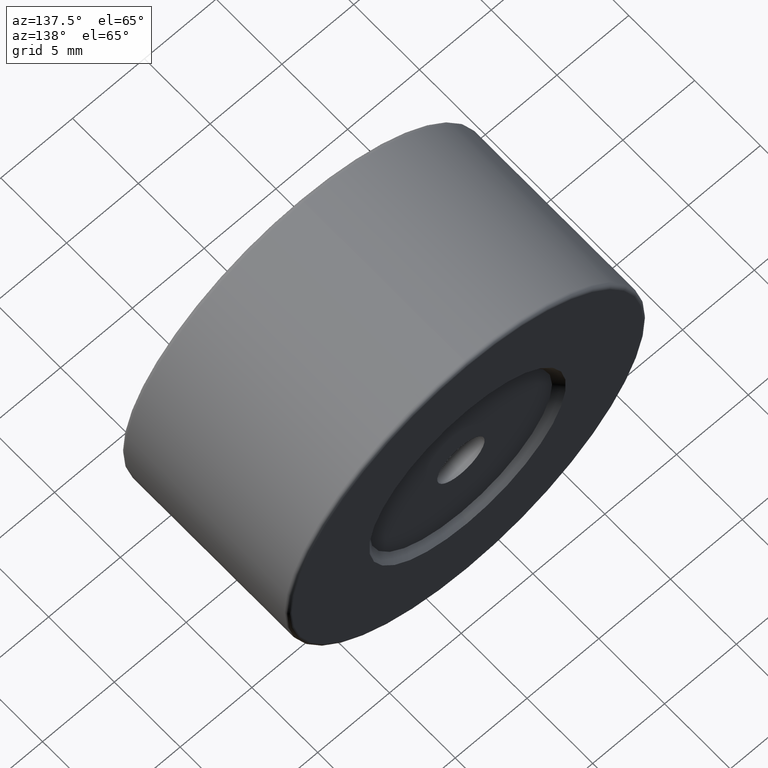
[diagram: clean part render]
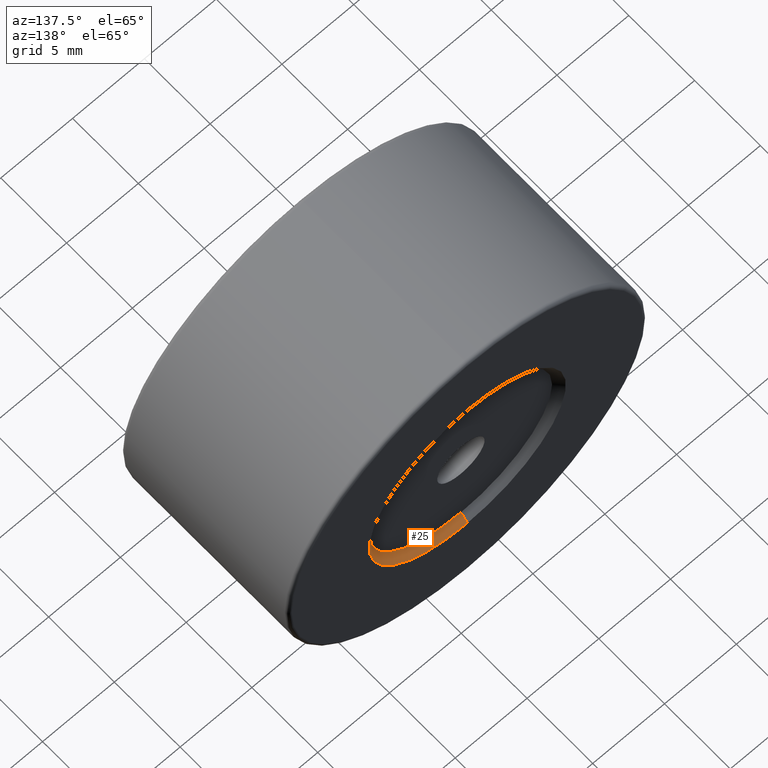
[diagram: same view with one face highlighted and labeled with its STEP entity id]
A machine part, auxiliary view. The second image highlights one B-rep face of the part: STEP entity #25.
In plain terms, the highlighted conical surface has half-angle 45 deg.
Its self-contained STEP definition (entity closure, byte-faithful):
#11 = CARTESIAN_POINT ( 'NONE',  ( -22.50520183104453409, 7.748252184769388151, 56.85000000000000853 ) ) ;
#24 = CARTESIAN_POINT ( 'NONE',  ( -22.50520183104453409, 7.248252184769383710, 56.35000000000000142 ) ) ;
#25 = ADVANCED_FACE ( 'NONE', ( #126 ), #299, .F. ) ;
#27 = DIRECTION ( 'NONE',  ( 0.0000000000000000000, 0.0000000000000000000, 1.000000000000000000 ) ) ;
#31 = CIRCLE ( 'NONE', #364, 6.850000000000008527 ) ;
#33 = VERTEX_POINT ( 'NONE', #228 ) ;
#55 = VERTEX_POINT ( 'NONE', #77 ) ;
#63 = DIRECTION ( 'NONE',  ( 8.659560562354955045E-17, 0.7071067811865456854, -0.7071067811865493491 ) ) ;
#77 = CARTESIAN_POINT ( 'NONE',  ( -22.50520183104453409, 7.248252184769387263, 56.35000000000000142 ) ) ;
#84 = ORIENTED_EDGE ( 'NONE', *, *, #139, .F. ) ;
#97 = VECTOR ( 'NONE', #63, 1000.000000000000000 ) ;
#98 = AXIS2_PLACEMENT_3D ( 'NONE', #301, #496, #487 ) ;
#105 = DIRECTION ( 'NONE',  ( -0.0000000000000000000, -1.000000000000000000, -0.0000000000000000000 ) ) ;
#120 = DIRECTION ( 'NONE',  ( 0.0000000000000000000, 0.7071067811865456854, 0.7071067811865493491 ) ) ;
#126 = FACE_OUTER_BOUND ( 'NONE', #185, .T. ) ;
#139 = EDGE_CURVE ( 'NONE', #190, #357, #31, .T. ) ;
#156 = EDGE_CURVE ( 'NONE', #55, #357, #336, .T. ) ;
#185 = EDGE_LOOP ( 'NONE', ( #450, #209, #365, #84 ) ) ;
#190 = VERTEX_POINT ( 'NONE', #480 ) ;
#200 = EDGE_CURVE ( 'NONE', #55, #33, #270, .T. ) ;
#209 = ORIENTED_EDGE ( 'NONE', *, *, #200, .F. ) ;
#219 = DIRECTION ( 'NONE',  ( 0.0000000000000000000, 1.000000000000000000, 0.0000000000000000000 ) ) ;
#228 = CARTESIAN_POINT ( 'NONE',  ( -22.50520183104453409, 7.248252184769387263, 43.64999999999999858 ) ) ;
#270 = CIRCLE ( 'NONE', #424, 6.350000000000001421 ) ;
#282 = CARTESIAN_POINT ( 'NONE',  ( -22.50520183104453409, 7.248252184769383710, 43.64999999999999858 ) ) ;
#299 = CONICAL_SURFACE ( 'NONE', #98, 6.350000000000001421, 0.7853981633974509435 ) ;
#301 = CARTESIAN_POINT ( 'NONE',  ( -22.50520183104453409, 7.248252184769383710, 50.00000000000000000 ) ) ;
#315 = EDGE_CURVE ( 'NONE', #33, #190, #333, .T. ) ;
#333 = LINE ( 'NONE', #282, #97 ) ;
#336 = LINE ( 'NONE', #24, #515 ) ;
#357 = VERTEX_POINT ( 'NONE', #11 ) ;
#364 = AXIS2_PLACEMENT_3D ( 'NONE', #509, #105, #372 ) ;
#365 = ORIENTED_EDGE ( 'NONE', *, *, #156, .T. ) ;
#372 = DIRECTION ( 'NONE',  ( 0.0000000000000000000, 0.0000000000000000000, 1.000000000000000000 ) ) ;
#424 = AXIS2_PLACEMENT_3D ( 'NONE', #440, #219, #27 ) ;
#440 = CARTESIAN_POINT ( 'NONE',  ( -22.50520183104453409, 7.248252184769387263, 50.00000000000000000 ) ) ;
#450 = ORIENTED_EDGE ( 'NONE', *, *, #315, .F. ) ;
#480 = CARTESIAN_POINT ( 'NONE',  ( -22.50520183104453409, 7.748252184769388151, 43.14999999999999147 ) ) ;
#487 = DIRECTION ( 'NONE',  ( 0.0000000000000000000, 0.0000000000000000000, 1.000000000000000000 ) ) ;
#496 = DIRECTION ( 'NONE',  ( 0.0000000000000000000, 1.000000000000000000, 0.0000000000000000000 ) ) ;
#509 = CARTESIAN_POINT ( 'NONE',  ( -22.50520183104453409, 7.748252184769388151, 50.00000000000000000 ) ) ;
#515 = VECTOR ( 'NONE', #120, 1000.000000000000000 ) ;